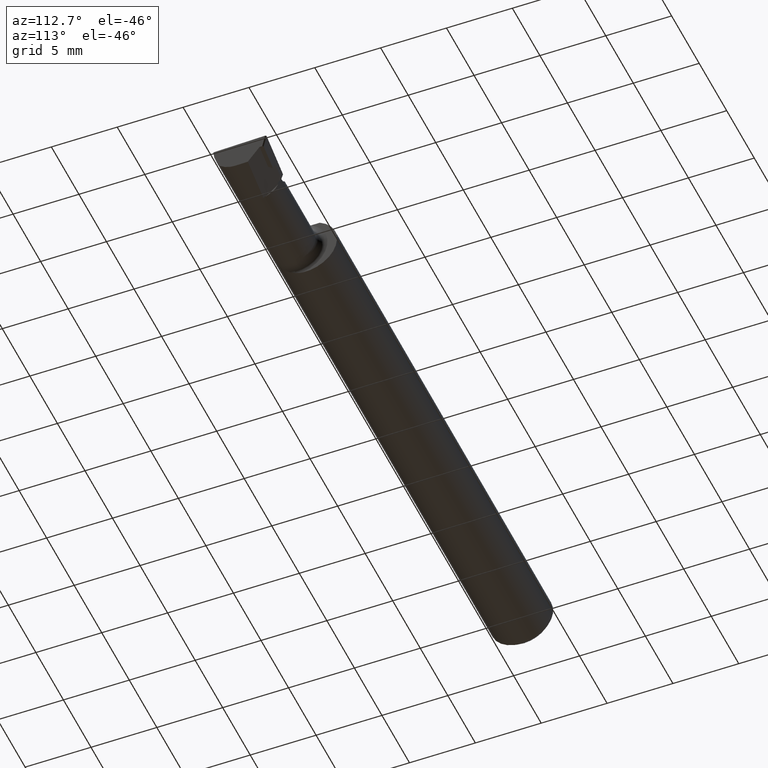
[diagram: clean part render]
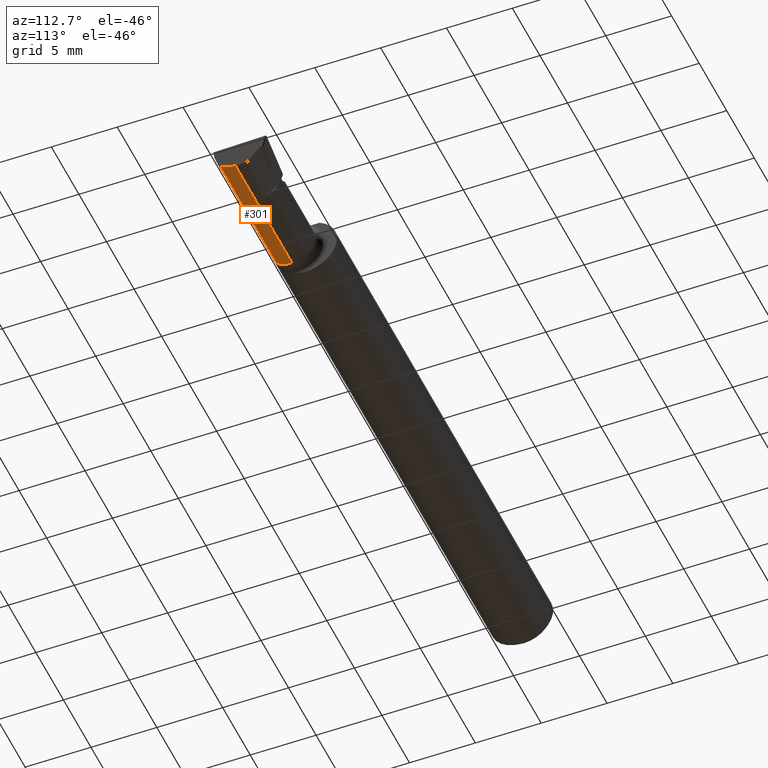
[diagram: same view with one face highlighted and labeled with its STEP entity id]
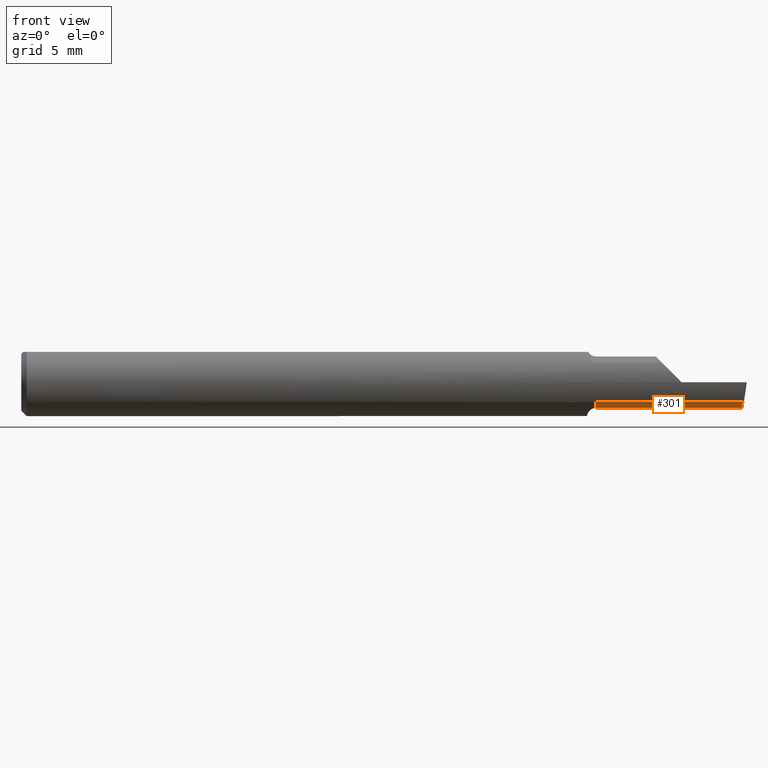
[diagram: same view with one face highlighted and labeled with its STEP entity id]
A machine part, auxiliary view. The second image highlights one B-rep face of the part: STEP entity #301.
A second angle (front view) of the same face is appended — the face is thin or edge-on in the first view.
In plain terms, the highlighted cylindrical surface (edge-blend (fillet) strip) has radius 1.8034 mm, axis along (-1, -0, -0).
Its self-contained STEP definition (entity closure, byte-faithful):
#15 = FACE_OUTER_BOUND ( 'NONE', #356, .T. ) ;
#55 = CARTESIAN_POINT ( 'NONE',  ( 50.80000000000003979, -0.7772400000000000420, -1.803399999999999670 ) ) ;
#62 = CARTESIAN_POINT ( 'NONE',  ( 40.25899999999999324, -0.7772400000000002640, 0.000000000000000000 ) ) ;
#80 = ORIENTED_EDGE ( 'NONE', *, *, #1159, .F. ) ;
#98 = CARTESIAN_POINT ( 'NONE',  ( 46.86299999999999955, -0.7772400000000000420, -1.803399999999999670 ) ) ;
#109 = VERTEX_POINT ( 'NONE', #98 ) ;
#113 = AXIS2_PLACEMENT_3D ( 'NONE', #983, #1096, #528 ) ;
#139 = ORIENTED_EDGE ( 'NONE', *, *, #842, .F. ) ;
#186 = VECTOR ( 'NONE', #461, 1000.000000000000000 ) ;
#220 = CARTESIAN_POINT ( 'NONE',  ( 39.62400000000000233, -0.7772400000000000420, -1.803399999999999670 ) ) ;
#222 = CARTESIAN_POINT ( 'NONE',  ( 43.24350000000000449, -1.932524967320262244, -1.384762869333165058 ) ) ;
#239 = DIRECTION ( 'NONE',  ( -1.000000000000000000, -0.000000000000000000, -0.000000000000000000 ) ) ;
#263 = DIRECTION ( 'NONE',  ( 0.000000000000000000, 0.000000000000000000, -1.000000000000000000 ) ) ;
#266 = VERTEX_POINT ( 'NONE', #1091 ) ;
#281 = EDGE_CURVE ( 'NONE', #109, #346, #1170, .T. ) ;
#296 = CARTESIAN_POINT ( 'NONE',  ( 50.51705636650020637, -1.203853210690318365, -1.803400000000000114 ) ) ;
#301 = ADVANCED_FACE ( 'NONE', ( #15 ), #410, .T. ) ;
#346 = VERTEX_POINT ( 'NONE', #850 ) ;
#356 = EDGE_LOOP ( 'NONE', ( #1068, #139, #80, #902, #771 ) ) ;
#377 = EDGE_CURVE ( 'NONE', #525, #346, #1109, .T. ) ;
#391 =( BOUNDED_CURVE ( )  B_SPLINE_CURVE ( 3, ( #683, #1048, #296, #581 ),
 .UNSPECIFIED., .F., .T. ) 
 B_SPLINE_CURVE_WITH_KNOTS ( ( 4, 4 ),
 ( 5.799537242328774767, 6.494836076230707356 ),
 .UNSPECIFIED. ) 
 CURVE ( )  GEOMETRIC_REPRESENTATION_ITEM ( )  RATIONAL_B_SPLINE_CURVE ( ( 1.000000000000000000, 0.9601174178332918530, 0.9601174178332918530, 1.000000000000000000 ) ) 
 REPRESENTATION_ITEM ( '' )  );
#410 = CYLINDRICAL_SURFACE ( 'NONE', #113, 1.803399999999999670 ) ;
#421 = DIRECTION ( 'NONE',  ( -1.000000000000000000, -0.000000000000000000, -0.000000000000000000 ) ) ;
#446 = DIRECTION ( 'NONE',  ( 1.000000000000000000, 0.000000000000000000, 0.000000000000000000 ) ) ;
#461 = DIRECTION ( 'NONE',  ( -1.000000000000000000, -0.000000000000000000, -0.000000000000000000 ) ) ;
#467 = CARTESIAN_POINT ( 'NONE',  ( 40.25899999999999324, -1.932524967320262244, -1.384762869333165058 ) ) ;
#525 = VERTEX_POINT ( 'NONE', #467 ) ;
#528 = DIRECTION ( 'NONE',  ( 0.000000000000000000, 0.000000000000000000, 1.000000000000000000 ) ) ;
#557 = CARTESIAN_POINT ( 'NONE',  ( 50.54923430675796681, -1.932524967320262022, -1.384762869333165280 ) ) ;
#581 = CARTESIAN_POINT ( 'NONE',  ( 50.52831152078904609, -0.7772400000000000420, -1.803399999999999670 ) ) ;
#642 = EDGE_CURVE ( 'NONE', #804, #525, #807, .T. ) ;
#683 = CARTESIAN_POINT ( 'NONE',  ( 50.54923430675796681, -1.932524967320262022, -1.384762869333165280 ) ) ;
#771 = ORIENTED_EDGE ( 'NONE', *, *, #377, .T. ) ;
#785 = VECTOR ( 'NONE', #421, 1000.000000000000000 ) ;
#804 = VERTEX_POINT ( 'NONE', #557 ) ;
#807 = LINE ( 'NONE', #222, #785 ) ;
#842 = EDGE_CURVE ( 'NONE', #266, #109, #928, .T. ) ;
#850 = CARTESIAN_POINT ( 'NONE',  ( 40.25899999999999324, -0.7772400000000000420, -1.803399999999999670 ) ) ;
#902 = ORIENTED_EDGE ( 'NONE', *, *, #642, .T. ) ;
#928 = LINE ( 'NONE', #55, #186 ) ;
#983 = CARTESIAN_POINT ( 'NONE',  ( 39.62400000000000233, -0.7772400000000002640, 0.000000000000000000 ) ) ;
#1048 = CARTESIAN_POINT ( 'NONE',  ( 50.52432033428175373, -1.604944766737496975, -1.658057662041802827 ) ) ;
#1068 = ORIENTED_EDGE ( 'NONE', *, *, #281, .F. ) ;
#1091 = CARTESIAN_POINT ( 'NONE',  ( 50.52831152078904609, -0.7772400000000000420, -1.803399999999999670 ) ) ;
#1096 = DIRECTION ( 'NONE',  ( -1.000000000000000000, -0.000000000000000000, -0.000000000000000000 ) ) ;
#1109 = CIRCLE ( 'NONE', #1153, 1.803399999999999670 ) ;
#1153 = AXIS2_PLACEMENT_3D ( 'NONE', #62, #446, #263 ) ;
#1159 = EDGE_CURVE ( 'NONE', #804, #266, #391, .T. ) ;
#1170 = LINE ( 'NONE', #220, #1230 ) ;
#1230 = VECTOR ( 'NONE', #239, 1000.000000000000000 ) ;